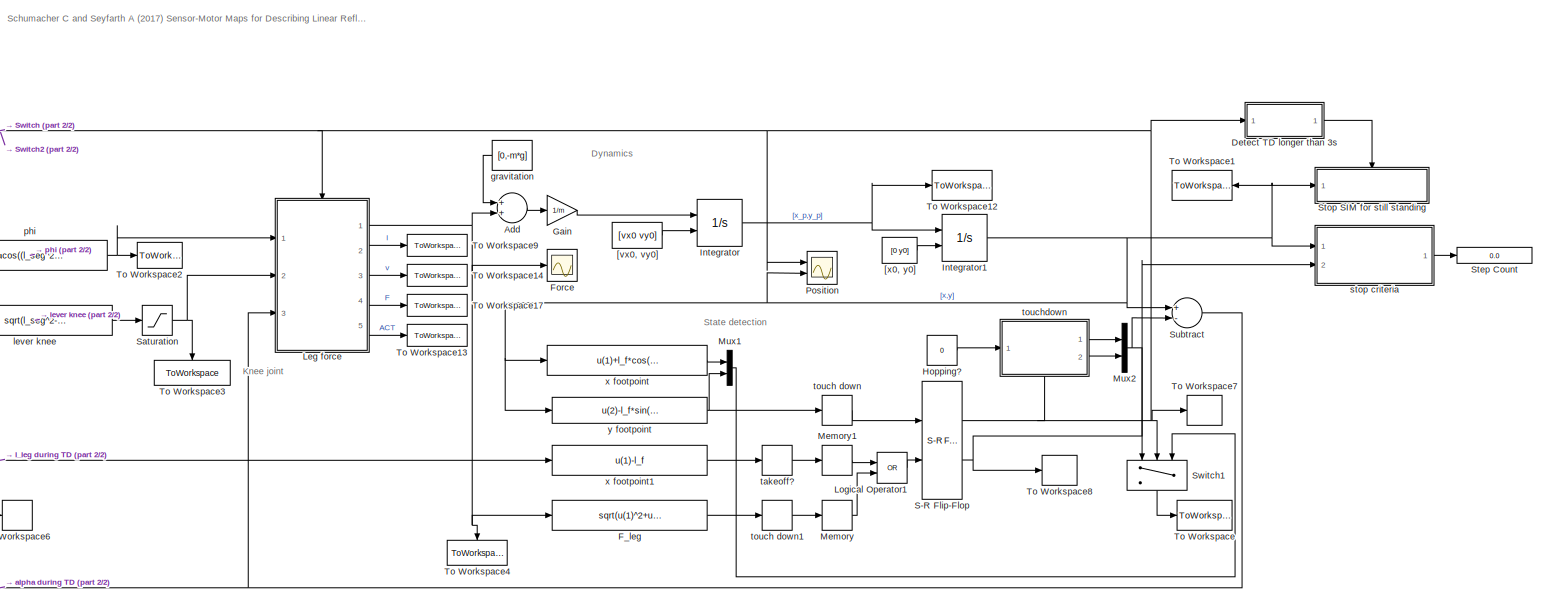
[diagram: root canvas - part 1/2, most of the canvas]
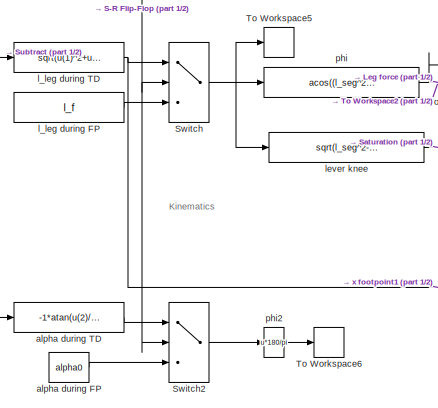
[diagram: root canvas - part 2/2, middle left region]
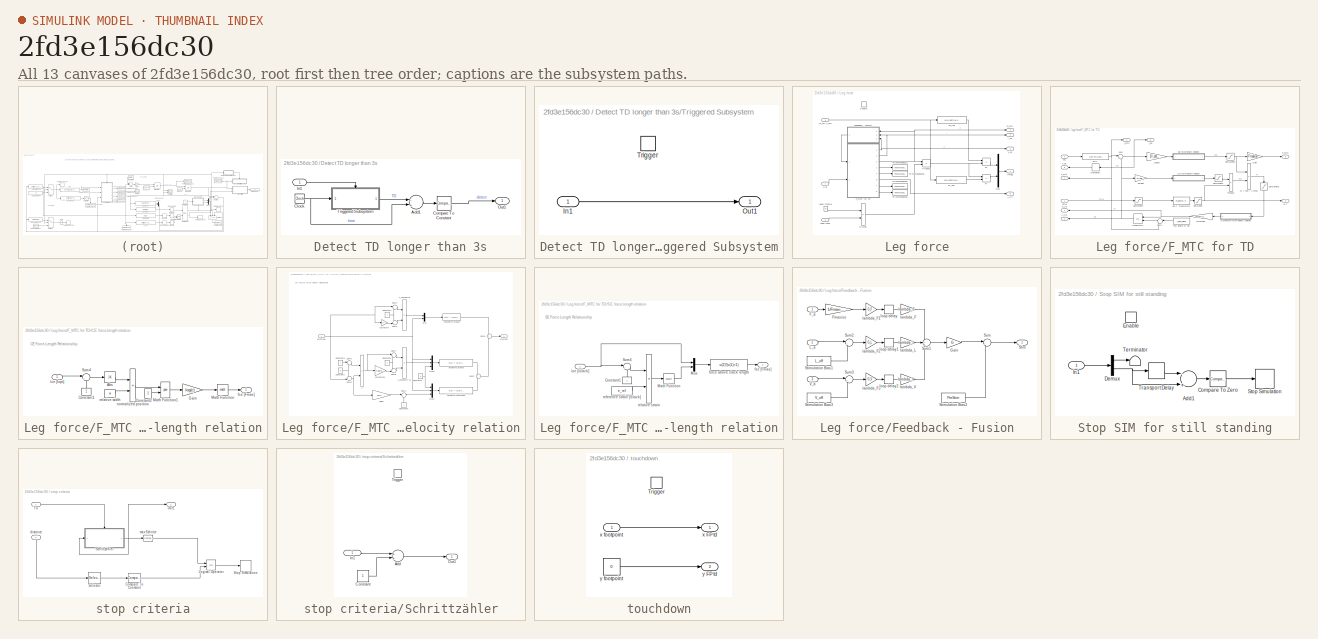
[diagram: thumbnail index - all 13 canvases of the model, root first then tree order]
MODEL slx_2fd3e156dc30
KIND model
CONFIG AbsTol = 1e-8
CONFIG EnableMultiTasking = on
CONFIG FixedStep = auto
CONFIG MaxStep = ts_max
CONFIG MinStep = auto
CONFIG RelTol = 1e-8
CONFIG SampleTimeConstraint = Unconstrained
CONFIG Solver = ode45
CONFIG SolverName = ode45
CONFIG StartTime = 0.0
CONFIG StopTime = 60
BLOCK [Sum] Add
  InputSameDT = off
  OutDataTypeStr = Inherit: Inherit via internal rule
  Ports = [2, 1]
  SaturateOnIntegerOverflow = off
BLOCK [SubSystem] Detect TD longer than 3s
  Ports = [1, 1]
  RequestExecContextInheritance = off
  Variant = off
BLOCK [Sum] Detect TD longer than 3s/Add1
  InputSameDT = off
  Inputs = -+
  OutDataTypeStr = Inherit: Inherit via internal rule
  Ports = [2, 1]
  SaturateOnIntegerOverflow = off
BLOCK [Clock] Detect TD longer than 3s/Clock
BLOCK [Reference] Detect TD longer than 3s/Compare To Constant  REF=simulink/Logic and Bit
Operations/Compare
To Constant
  Ports = [1, 1]
  SourceBlock = simulink/Logic and Bit\nOperations/Compare\nTo Constant
  SourceType = Compare To Constant
BLOCK [Inport] Detect TD longer than 3s/In1
  IconDisplay = Port number
BLOCK [Outport] Detect TD longer than 3s/Out1
  IconDisplay = Port number
BLOCK [SubSystem] Detect TD longer than 3s/Triggered Subsystem
  Ports = [1, 1, 0, 1]
  RequestExecContextInheritance = off
  TreatAsAtomicUnit = on
  Variant = off
BLOCK [Inport] Detect TD longer than 3s/Triggered Subsystem/In1
  IconDisplay = Port number
BLOCK [Outport] Detect TD longer than 3s/Triggered Subsystem/Out1
  IconDisplay = Port number
  InitialOutput = [0]
BLOCK [TriggerPort] Detect TD longer than 3s/Triggered Subsystem/Trigger
  Ports = []
  StatesWhenEnabling = held
  VariantControl = Variant
BLOCK [Fcn] F_leg
  Expr = sqrt(u(1)^2+u(2)^2)
BLOCK [Scope] Force
  NumInputPorts = 1
  Ports = [1]
  ScopeSpecificationString = Simulink.scopes.TimeScopeBlockCfg('CurrentConfiguration', extmgr.ConfigurationSet(extmgr.Configuration('Core','General UI',true),extmgr.Configuration('Core','Source UI',true),extmgr.Configuration('Sources','WiredSimulink',true),extmgr.Configuration('Visuals','Time Domain',true,'SerializedDisplays',{struct('MinYLimReal','-47.55228','MaxYLimReal','3226.37059','YLabelReal','','MinYLimMag','0.00000','...<+1437ch>
BLOCK [Gain] Gain
  Gain = 1/m
  OutDataTypeStr = Inherit: Inherit via internal rule
  ParamDataTypeStr = Inherit: Inherit via internal rule
  SaturateOnIntegerOverflow = off
BLOCK [Constant] Hopping?
  Value = 0
BLOCK [Integrator] Integrator
  InitialConditionSource = external
  Ports = [2, 1]
BLOCK [Integrator] Integrator1
  InitialConditionSource = external
  Ports = [2, 1]
BLOCK [SubSystem] Leg force
  Ports = [3, 5, 1]
  RequestExecContextInheritance = off
  Variant = off
BLOCK [Outport] Leg force/ACT
  IconDisplay = Port number
  Port = 5
BLOCK [Product] Leg force/Divide
  InputSameDT = off
  Inputs = */
  OutDataTypeStr = Inherit: Inherit via internal rule
  Ports = [2, 1]
  RndMeth = Floor
  SaturateOnIntegerOverflow = off
BLOCK [EnablePort] Leg force/Enable
  Ports = []
  PropagateVarSize = During execution
  StatesWhenEnabling = reset
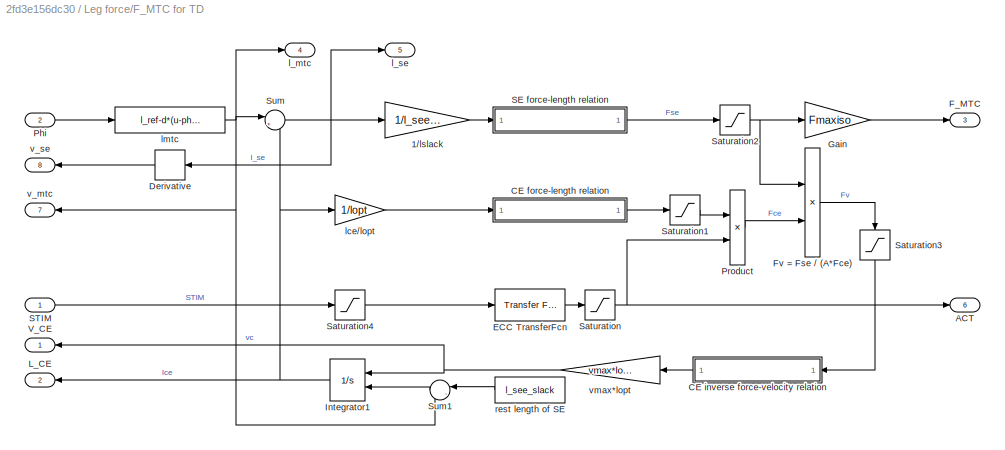
BLOCK [SubSystem] Leg force/F_MTC for TD
  Ports = [2, 8]
  RequestExecContextInheritance = off
  TreatAsAtomicUnit = on
  Variant = off
BLOCK [Gain] Leg force/F_MTC for TD/1//lslack
  Gain = 1/l_see_slack
BLOCK [Outport] Leg force/F_MTC for TD/ACT
  IconDisplay = Port number
  InitialOutput = [-1]
  Port = 6
BLOCK [SubSystem] Leg force/F_MTC for TD/CE force-length relation
  Ports = [1, 1]
  RequestExecContextInheritance = off
  Variant = off
BLOCK [Abs] Leg force/F_MTC for TD/CE force-length relation/Abs
  SaturateOnIntegerOverflow = off
BLOCK [Constant] Leg force/F_MTC for TD/CE force-length relation/Constant1
BLOCK [Constant] Leg force/F_MTC for TD/CE force-length relation/Constant2
  Value = 3
BLOCK [Gain] Leg force/F_MTC for TD/CE force-length relation/Gain
  Gain = log(c)
  OutDataTypeStr = Inherit: Inherit via internal rule
  ParamDataTypeStr = Inherit: Inherit via internal rule
  SaturateOnIntegerOverflow = off
BLOCK [Math] Leg force/F_MTC for TD/CE force-length relation/Math Function
  Ports = [1, 1]
BLOCK [Math] Leg force/F_MTC for TD/CE force-length relation/Math Function1
  Operator = pow
  Ports = [2, 1]
BLOCK [Sum] Leg force/F_MTC for TD/CE force-length relation/Sum4
  IconShape = round
  Inputs = |+-
  Ports = [2, 1]
BLOCK [Outport] Leg force/F_MTC for TD/CE force-length relation/fce [Fmax]
  IconDisplay = Port number
BLOCK [Inport] Leg force/F_MTC for TD/CE force-length relation/lce [lopt]
  IconDisplay = Port number
BLOCK [Product] Leg force/F_MTC for TD/CE force-length relation/normalized position
  InputSameDT = off
  Inputs = */
  OutDataTypeStr = Inherit: Inherit via internal rule
  Ports = [2, 1]
  RndMeth = Floor
  SaturateOnIntegerOverflow = off
BLOCK [Constant] Leg force/F_MTC for TD/CE force-length relation/relative width
  Value = w
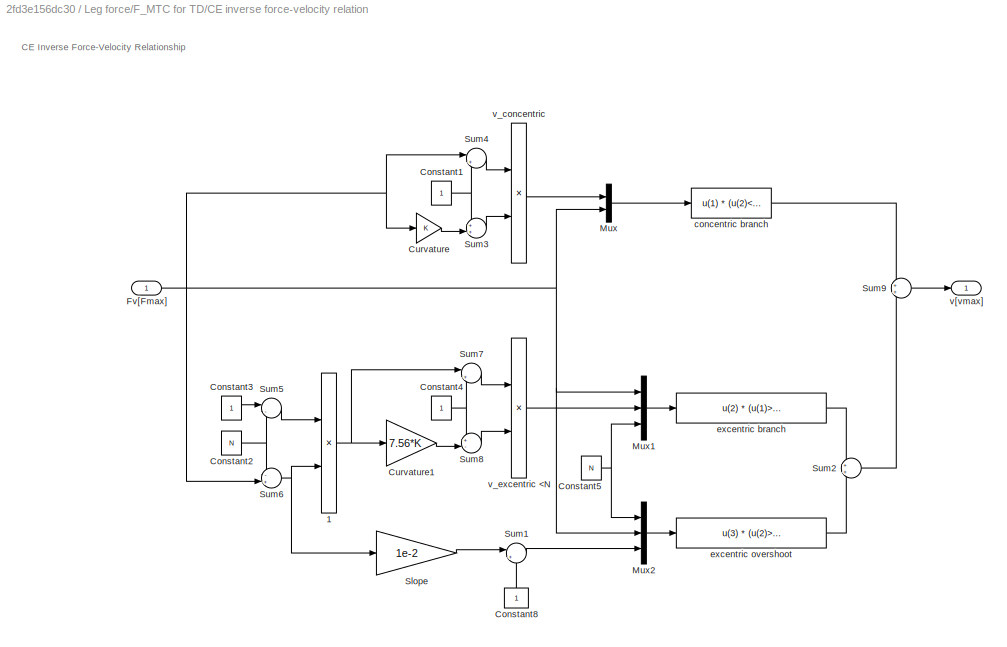
BLOCK [SubSystem] Leg force/F_MTC for TD/CE inverse force-velocity relation
  Ports = [1, 1]
  RequestExecContextInheritance = off
  Variant = off
BLOCK [Product] Leg force/F_MTC for TD/CE inverse force-velocity relation/1
  InputSameDT = off
  Inputs = /*
  OutDataTypeStr = Inherit: Inherit via internal rule
  Ports = [2, 1]
  RndMeth = Floor
  SaturateOnIntegerOverflow = off
BLOCK [Constant] Leg force/F_MTC for TD/CE inverse force-velocity relation/Constant1
BLOCK [Constant] Leg force/F_MTC for TD/CE inverse force-velocity relation/Constant2
  Value = N
BLOCK [Constant] Leg force/F_MTC for TD/CE inverse force-velocity relation/Constant3
BLOCK [Constant] Leg force/F_MTC for TD/CE inverse force-velocity relation/Constant4
BLOCK [Constant] Leg force/F_MTC for TD/CE inverse force-velocity relation/Constant5
  Value = N
BLOCK [Constant] Leg force/F_MTC for TD/CE inverse force-velocity relation/Constant8
BLOCK [Gain] Leg force/F_MTC for TD/CE inverse force-velocity relation/Curvature
  Gain = K
BLOCK [Gain] Leg force/F_MTC for TD/CE inverse force-velocity relation/Curvature1
  Gain = 7.56*K
BLOCK [Inport] Leg force/F_MTC for TD/CE inverse force-velocity relation/Fv[Fmax]
  IconDisplay = Port number
BLOCK [Mux] Leg force/F_MTC for TD/CE inverse force-velocity relation/Mux
  DisplayOption = bar
  Inputs = 2
  Ports = [2, 1]
BLOCK [Mux] Leg force/F_MTC for TD/CE inverse force-velocity relation/Mux1
  DisplayOption = bar
  Inputs = 3
  Ports = [3, 1]
BLOCK [Mux] Leg force/F_MTC for TD/CE inverse force-velocity relation/Mux2
  DisplayOption = bar
  Inputs = 3
  Ports = [3, 1]
BLOCK [Gain] Leg force/F_MTC for TD/CE inverse force-velocity relation/Slope
  Gain = 1e-2
BLOCK [Sum] Leg force/F_MTC for TD/CE inverse force-velocity relation/Sum1
  IconShape = round
  Inputs = |++
  Ports = [2, 1]
BLOCK [Sum] Leg force/F_MTC for TD/CE inverse force-velocity relation/Sum2
  IconShape = round
  Ports = [2, 1]
BLOCK [Sum] Leg force/F_MTC for TD/CE inverse force-velocity relation/Sum3
  IconShape = round
  Inputs = ++|
  Ports = [2, 1]
BLOCK [Sum] Leg force/F_MTC for TD/CE inverse force-velocity relation/Sum4
  IconShape = round
  Inputs = |+-
  Ports = [2, 1]
BLOCK [Sum] Leg force/F_MTC for TD/CE inverse force-velocity relation/Sum5
  IconShape = round
  Inputs = |-+
  Ports = [2, 1]
BLOCK [Sum] Leg force/F_MTC for TD/CE inverse force-velocity relation/Sum6
  IconShape = round
  Inputs = -+|
  Ports = [2, 1]
BLOCK [Sum] Leg force/F_MTC for TD/CE inverse force-velocity relation/Sum7
  IconShape = round
  Inputs = |++
  Ports = [2, 1]
BLOCK [Sum] Leg force/F_MTC for TD/CE inverse force-velocity relation/Sum8
  IconShape = round
  Inputs = +-|
  Ports = [2, 1]
BLOCK [Sum] Leg force/F_MTC for TD/CE inverse force-velocity relation/Sum9
  IconShape = round
  Ports = [2, 1]
BLOCK [Fcn] Leg force/F_MTC for TD/CE inverse force-velocity relation/concentric branch
  Expr = u(1) * (u(2)<=1)
BLOCK [Fcn] Leg force/F_MTC for TD/CE inverse force-velocity relation/excentric branch
  Expr = u(2) * (u(1)>1)*(u(1)<=u(3))
BLOCK [Fcn] Leg force/F_MTC for TD/CE inverse force-velocity relation/excentric overshoot
  Expr = u(3) * (u(2)>u(1))
BLOCK [Outport] Leg force/F_MTC for TD/CE inverse force-velocity relation/v[vmax]
  IconDisplay = Port number
BLOCK [Product] Leg force/F_MTC for TD/CE inverse force-velocity relation/v_concentric
  InputSameDT = off
  Inputs = */
  OutDataTypeStr = Inherit: Inherit via internal rule
  Ports = [2, 1]
  RndMeth = Floor
  SaturateOnIntegerOverflow = off
BLOCK [Product] Leg force/F_MTC for TD/CE inverse force-velocity relation/v_excentric <N
  InputSameDT = off
  Inputs = */
  OutDataTypeStr = Inherit: Inherit via internal rule
  Ports = [2, 1]
  RndMeth = Floor
  SaturateOnIntegerOverflow = off
BLOCK [Derivative] Leg force/F_MTC for TD/Derivative
BLOCK [Reference] Leg force/F_MTC for TD/ECC TransferFcn  REF=simulink_extras/Additional
Linear/Transfer Fcn
(with initial outputs)
  AttributesFormatString = pre-activation: %<Y0>
  Ports = [1, 1]
  SourceBlock = simulink_extras/Additional\nLinear/Transfer Fcn\n(with initial outputs)
  SourceType = Transfer Function with Initial Outputs
BLOCK [Outport] Leg force/F_MTC for TD/F_MTC
  IconDisplay = Port number
  InitialOutput = [-1]
  Port = 3
BLOCK [Product] Leg force/F_MTC for TD/Fv = Fse // (A*Fce)
  Inputs = */
  Ports = [2, 1]
  RndMeth = Floor
BLOCK [Gain] Leg force/F_MTC for TD/Gain
  Gain = Fmaxiso
  OutDataTypeStr = Inherit: Inherit via internal rule
  ParamDataTypeStr = Inherit: Inherit via internal rule
  SaturateOnIntegerOverflow = off
BLOCK [Integrator] Leg force/F_MTC for TD/Integrator1
  InitialConditionSource = external
  Ports = [2, 1]
BLOCK [Outport] Leg force/F_MTC for TD/L_CE
  IconDisplay = Port number
  InitialOutput = [-1]
  Port = 2
BLOCK [Inport] Leg force/F_MTC for TD/Phi
  IconDisplay = Port number
  Port = 2
BLOCK [Product] Leg force/F_MTC for TD/Product
  InputSameDT = off
  OutDataTypeStr = Inherit: Inherit via internal rule
  Ports = [2, 1]
  RndMeth = Floor
  SaturateOnIntegerOverflow = off
BLOCK [SubSystem] Leg force/F_MTC for TD/SE force-length relation
  Ports = [1, 1]
  RequestExecContextInheritance = off
  Variant = off
BLOCK [Constant] Leg force/F_MTC for TD/SE force-length relation/Constant1
BLOCK [Math] Leg force/F_MTC for TD/SE force-length relation/Math Function
  Operator = square
  Ports = [1, 1]
BLOCK [Mux] Leg force/F_MTC for TD/SE force-length relation/Mux
  DisplayOption = bar
  Inputs = 2
  Ports = [2, 1]
BLOCK [Sum] Leg force/F_MTC for TD/SE force-length relation/Sum4
  IconShape = round
  Inputs = |+-
  Ports = [2, 1]
BLOCK [Fcn] Leg force/F_MTC for TD/SE force-length relation/force above slack length
  Expr = u(2)*(u(1)>1)
BLOCK [Outport] Leg force/F_MTC for TD/SE force-length relation/fse [Fmax]
  IconDisplay = Port number
BLOCK [Inport] Leg force/F_MTC for TD/SE force-length relation/lse [lslack]
  IconDisplay = Port number
BLOCK [Constant] Leg force/F_MTC for TD/SE force-length relation/reference strain [lslack]
  Value = e_ref
BLOCK [Product] Leg force/F_MTC for TD/SE force-length relation/relative strain
  InputSameDT = off
  Inputs = */
  OutDataTypeStr = Inherit: Inherit via internal rule
  Ports = [2, 1]
  RndMeth = Floor
  SaturateOnIntegerOverflow = off
BLOCK [Inport] Leg force/F_MTC for TD/STIM
  IconDisplay = Port number
BLOCK [Saturate] Leg force/F_MTC for TD/Saturation
  InputPortMap = u0
  LowerLimit = 0.001
  Ports = [1, 1]
  UpperLimit = inf
  ZeroCross = off
BLOCK [Saturate] Leg force/F_MTC for TD/Saturation1
  InputPortMap = u0
  LowerLimit = 0
  Ports = [1, 1]
  UpperLimit = 1
  ZeroCross = off
BLOCK [Saturate] Leg force/F_MTC for TD/Saturation2
  InputPortMap = u0
  LowerLimit = 0
  Ports = [1, 1]
  UpperLimit = N
BLOCK [Saturate] Leg force/F_MTC for TD/Saturation3
  InputPortMap = u0
  LowerLimit = 0
  Ports = [1, 1]
  UpperLimit = N
  ZeroCross = off
BLOCK [Saturate] Leg force/F_MTC for TD/Saturation4
  InputPortMap = u0
  LowerLimit = 0
  Ports = [1, 1]
  UpperLimit = 1
  ZeroCross = off
BLOCK [Sum] Leg force/F_MTC for TD/Sum
  IconShape = round
  InputSameDT = off
  Inputs = |+-
  OutDataTypeStr = Inherit: Inherit via internal rule
  Ports = [2, 1]
  SaturateOnIntegerOverflow = off
BLOCK [Sum] Leg force/F_MTC for TD/Sum1
  IconShape = round
  Inputs = |-+
  Ports = [2, 1]
BLOCK [Outport] Leg force/F_MTC for TD/V_CE
  IconDisplay = Port number
  InitialOutput = [-1]
BLOCK [Outport] Leg force/F_MTC for TD/l_mtc
  IconDisplay = Port number
  Port = 4
BLOCK [Outport] Leg force/F_MTC for TD/l_se
  IconDisplay = Port number
  Port = 5
BLOCK [Gain] Leg force/F_MTC for TD/lce//lopt
  Gain = 1/lopt
BLOCK [Fcn] Leg force/F_MTC for TD/lmtc
  Expr = l_ref-d*(u-phi_ref)
BLOCK [Constant] Leg force/F_MTC for TD/rest length of SE
  Value = l_see_slack
BLOCK [Outport] Leg force/F_MTC for TD/v_mtc
  IconDisplay = Port number
  Port = 7
BLOCK [Outport] Leg force/F_MTC for TD/v_se
  IconDisplay = Port number
  Port = 8
BLOCK [Gain] Leg force/F_MTC for TD/vmax*lopt
  Gain = vmax*lopt
BLOCK [Outport] Leg force/F_mtc
  IconDisplay = Port number
  Port = 4
BLOCK [SubSystem] Leg force/Feedback - Fusion
  Ports = [3, 1]
  RequestExecContextInheritance = off
  Variant = off
BLOCK [Inport] Leg force/Feedback - Fusion/F_a
  IconDisplay = Port number
BLOCK [Gain] Leg force/Feedback - Fusion/Fmaxiso
  Gain = 1/Fmaxiso
  OutDataTypeStr = Inherit: Inherit via internal rule
  ParamDataTypeStr = Inherit: Inherit via internal rule
  SaturateOnIntegerOverflow = off
BLOCK [Gain] Leg force/Feedback - Fusion/Gain
  Gain = G
  OutDataTypeStr = Inherit: Inherit via internal rule
  ParamDataTypeStr = Inherit: Inherit via internal rule
  SaturateOnIntegerOverflow = off
BLOCK [Inport] Leg force/Feedback - Fusion/L_a
  IconDisplay = Port number
  Port = 2
BLOCK [Outport] Leg force/Feedback - Fusion/Stim
  IconDisplay = Port number
BLOCK [Constant] Leg force/Feedback - Fusion/Stimulation Bias1
  Value = L_off
BLOCK [Constant] Leg force/Feedback - Fusion/Stimulation Bias2
  Value = PreStim
BLOCK [Constant] Leg force/Feedback - Fusion/Stimulation Bias3
  Value = V_off
BLOCK [Sum] Leg force/Feedback - Fusion/Sum
  IconShape = round
  InputSameDT = off
  Inputs = |++
  OutDataTypeStr = Inherit: Inherit via internal rule
  Ports = [2, 1]
  SaturateOnIntegerOverflow = off
BLOCK [Sum] Leg force/Feedback - Fusion/Sum1
  IconShape = round
  InputSameDT = off
  Inputs = +++
  OutDataTypeStr = Inherit: Inherit via internal rule
  Ports = [3, 1]
  SaturateOnIntegerOverflow = off
BLOCK [Sum] Leg force/Feedback - Fusion/Sum2
  IconShape = round
  InputSameDT = off
  Inputs = |+-
  OutDataTypeStr = Inherit: Inherit via internal rule
  Ports = [2, 1]
  SaturateOnIntegerOverflow = off
BLOCK [Sum] Leg force/Feedback - Fusion/Sum3
  IconShape = round
  InputSameDT = off
  Inputs = |+-
  OutDataTypeStr = Inherit: Inherit via internal rule
  Ports = [2, 1]
  SaturateOnIntegerOverflow = off
BLOCK [Inport] Leg force/Feedback - Fusion/V_a
  IconDisplay = Port number
  Port = 3
BLOCK [Gain] Leg force/Feedback - Fusion/lambda_F
  Gain = lambda_F
  OutDataTypeStr = Inherit: Inherit via internal rule
  ParamDataTypeStr = Inherit: Inherit via internal rule
  SaturateOnIntegerOverflow = off
BLOCK [Gain] Leg force/Feedback - Fusion/lambda_F1
  Gain = G_F
  OutDataTypeStr = Inherit: Inherit via internal rule
  ParamDataTypeStr = Inherit: Inherit via internal rule
  SaturateOnIntegerOverflow = off
BLOCK [Gain] Leg force/Feedback - Fusion/lambda_F2
  Gain = G_L
  OutDataTypeStr = Inherit: Inherit via internal rule
  ParamDataTypeStr = Inherit: Inherit via internal rule
  SaturateOnIntegerOverflow = off
BLOCK [Gain] Leg force/Feedback - Fusion/lambda_F3
  Gain = G_V
  OutDataTypeStr = Inherit: Inherit via internal rule
  ParamDataTypeStr = Inherit: Inherit via internal rule
  SaturateOnIntegerOverflow = off
BLOCK [Gain] Leg force/Feedback - Fusion/lambda_L
  Gain = lambda_L
  OutDataTypeStr = Inherit: Inherit via internal rule
  ParamDataTypeStr = Inherit: Inherit via internal rule
  SaturateOnIntegerOverflow = off
BLOCK [Gain] Leg force/Feedback - Fusion/lambda_V
  Gain = lambda_V
  OutDataTypeStr = Inherit: Inherit via internal rule
  ParamDataTypeStr = Inherit: Inherit via internal rule
  SaturateOnIntegerOverflow = off
BLOCK [TransportDelay] Leg force/Feedback - Fusion/loop delay
  DelayTime = Delay
  Ports = [1, 1]
BLOCK [TransportDelay] Leg force/Feedback - Fusion/loop delay1
  DelayTime = Delay
  Ports = [1, 1]
BLOCK [TransportDelay] Leg force/Feedback - Fusion/loop delay2
  DelayTime = Delay
  Ports = [1, 1]
BLOCK [Product] Leg force/Fx
  InputSameDT = off
  OutDataTypeStr = Inherit: Inherit via internal rule
  Ports = [2, 1]
  RndMeth = Floor
  SaturateOnIntegerOverflow = off
BLOCK [Fcn] Leg force/Fx_leg
  Expr = u(1)/sqrt(u(1)^2+u(2)^2)
BLOCK [Product] Leg force/Fy
  InputSameDT = off
  OutDataTypeStr = Inherit: Inherit via internal rule
  Ports = [2, 1]
  RndMeth = Floor
  SaturateOnIntegerOverflow = off
BLOCK [Fcn] Leg force/Fy_leg
  Expr = u(2)/sqrt(u(1)^2+u(2)^2)
BLOCK [Mux] Leg force/Mux
  DisplayOption = bar
  Inputs = 2
  Ports = [2, 1]
BLOCK [Inport] Leg force/Phi
  IconDisplay = Port number
BLOCK [Product] Leg force/Product
  InputSameDT = off
  OutDataTypeStr = Inherit: Inherit via internal rule
  Ports = [2, 1]
  RndMeth = Floor
  SaturateOnIntegerOverflow = off
BLOCK [ToWorkspace] Leg force/To Workspace10
  FixptAsFi = on
  MaxDataPoints = inf
  Ports = [1]
  SampleTime = -1
  Save2DSignal = 3-D array (concatenate along third dimension)
  VariableName = SIM_l_se
BLOCK [ToWorkspace] Leg force/To Workspace11
  FixptAsFi = on
  MaxDataPoints = inf
  Ports = [1]
  SampleTime = -1
  Save2DSignal = 3-D array (concatenate along third dimension)
  VariableName = SIM_l_mtc
BLOCK [ToWorkspace] Leg force/To Workspace15
  FixptAsFi = on
  MaxDataPoints = inf
  Ports = [1]
  SampleTime = -1
  Save2DSignal = 3-D array (concatenate along third dimension)
  VariableName = SIM_v_mtc
BLOCK [ToWorkspace] Leg force/To Workspace16
  FixptAsFi = on
  MaxDataPoints = inf
  Ports = [1]
  SampleTime = -1
  Save2DSignal = 3-D array (concatenate along third dimension)
  VariableName = SIM_v_se
BLOCK [Outport] Leg force/[Fleg]
  IconDisplay = Port number
  InitialOutput = [0 0]
  OutputWhenDisabled = reset
BLOCK [Inport] Leg force/[x_ref,y_ref]
  IconDisplay = Port number
  Port = 3
BLOCK [Inport] Leg force/knee lever
  IconDisplay = Port number
  Port = 2
BLOCK [Outport] Leg force/l_ce
  IconDisplay = Port number
  Port = 2
BLOCK [Constant] Leg force/lever muscle
  Value = d
BLOCK [Outport] Leg force/v_ce
  IconDisplay = Port number
  Port = 3
BLOCK [Logic] Logical Operator1
  AllPortsSameDT = off
  Operator = OR
  OutDataTypeStr = boolean
  Ports = [2, 1]
BLOCK [Memory] Memory
  InheritSampleTime = on
BLOCK [Memory] Memory1
  InheritSampleTime = on
  X0 = -1
BLOCK [Mux] Mux1
  DisplayOption = bar
  Inputs = 2
  Ports = [2, 1]
BLOCK [Mux] Mux2
  DisplayOption = bar
  Inputs = 2
  Ports = [2, 1]
BLOCK [Scope] Position
  NumInputPorts = 2
  Ports = [2]
  ScopeSpecificationString = Simulink.scopes.TimeScopeBlockCfg('CurrentConfiguration', extmgr.ConfigurationSet(extmgr.Configuration('Core','General UI',true),extmgr.Configuration('Core','Source UI',true),extmgr.Configuration('Sources','WiredSimulink',true,'DataLoggingVariableName','ScopeData1'),extmgr.Configuration('Visuals','Time Domain',true,'SerializedDisplays',{struct('MinYLimReal','-0.13281','MaxYLimReal','1.19527','YLab...<+1466ch>
BLOCK [Reference] S-R Flip-Flop  REF=simulink_extras/Flip Flops/S-R
Flip-Flop
  Ports = [2, 2]
  SourceBlock = simulink_extras/Flip Flops/S-R\nFlip-Flop
  SourceType = SRFlipFlop
BLOCK [Saturate] Saturation
  InputPortMap = u0
  LowerLimit = 0.001
  Ports = [1, 1]
  UpperLimit = inf
BLOCK [Display] Step Count
  Decimation = 1
  Ports = [1]
BLOCK [SubSystem] Stop SIM for still standing
  Ports = [1, 0, 1]
  RequestExecContextInheritance = off
  Variant = off
BLOCK [Sum] Stop SIM for still standing/Add1
  InputSameDT = off
  Inputs = -+
  OutDataTypeStr = Inherit: Inherit via internal rule
  Ports = [2, 1]
  SaturateOnIntegerOverflow = off
BLOCK [Reference] Stop SIM for still standing/Compare To Zero  REF=simulink/Logic and Bit
Operations/Compare
To Zero
  Ports = [1, 1]
  SourceBlock = simulink/Logic and Bit\nOperations/Compare\nTo Zero
  SourceType = Compare To Zero
BLOCK [Demux] Stop SIM for still standing/Demux
  DisplayOption = bar
  Outputs = 2
  Ports = [1, 2]
BLOCK [EnablePort] Stop SIM for still standing/Enable
  Ports = []
BLOCK [Inport] Stop SIM for still standing/In1
  IconDisplay = Port number
BLOCK [Stop] Stop SIM for still standing/Stop Simulation
BLOCK [Terminator] Stop SIM for still standing/Terminator
BLOCK [TransportDelay] Stop SIM for still standing/Transport Delay
  Ports = [1, 1]
  TransDelayFeedthrough = on
BLOCK [Sum] Subtract
  InputSameDT = off
  Inputs = +-
  OutDataTypeStr = Inherit: Inherit via internal rule
  Ports = [2, 1]
  SaturateOnIntegerOverflow = off
BLOCK [Switch] Switch
  Criteria = u2 > Threshold
  InputSameDT = off
  SaturateOnIntegerOverflow = off
BLOCK [Switch] Switch1
  Criteria = u2 > Threshold
  InputSameDT = off
  SaturateOnIntegerOverflow = off
BLOCK [Switch] Switch2
  Criteria = u2 > Threshold
  InputSameDT = off
  SaturateOnIntegerOverflow = off
BLOCK [ToWorkspace] To Workspace
  FixptAsFi = on
  MaxDataPoints = inf
  Ports = [1]
  SampleTime = -1
  Save2DSignal = 3-D array (concatenate along third dimension)
  VariableName = SIM_xyFP
BLOCK [ToWorkspace] To Workspace1
  MaxDataPoints = inf
  Ports = [1]
  SampleTime = -1
  Save2DSignal = 2-D array (concatenate along first dimension)
  VariableName = SIM_xyCOM
BLOCK [ToWorkspace] To Workspace12
  FixptAsFi = on
  MaxDataPoints = inf
  Ports = [1]
  SampleTime = -1
  VariableName = vCOM
BLOCK [ToWorkspace] To Workspace13
  FixptAsFi = on
  MaxDataPoints = inf
  Ports = [1]
  SampleTime = -1
  Save2DSignal = 3-D array (concatenate along third dimension)
  VariableName = SIM_ACT
BLOCK [ToWorkspace] To Workspace14
  FixptAsFi = on
  MaxDataPoints = inf
  Ports = [1]
  SampleTime = -1
  Save2DSignal = 3-D array (concatenate along third dimension)
  VariableName = SIM_v_ce
BLOCK [ToWorkspace] To Workspace17
  FixptAsFi = on
  MaxDataPoints = inf
  Ports = [1]
  SampleTime = -1
  Save2DSignal = 3-D array (concatenate along third dimension)
  VariableName = SIM_F_mtc
BLOCK [ToWorkspace] To Workspace2
  FixptAsFi = on
  MaxDataPoints = inf
  Ports = [1]
  SampleTime = -1
  Save2DSignal = 3-D array (concatenate along third dimension)
  VariableName = SIM_phi
BLOCK [ToWorkspace] To Workspace3
  FixptAsFi = on
  MaxDataPoints = inf
  Ports = [1]
  SampleTime = -1
  Save2DSignal = 3-D array (concatenate along third dimension)
  VariableName = SIM_lever_arm
BLOCK [ToWorkspace] To Workspace4
  FixptAsFi = on
  MaxDataPoints = inf
  Ports = [1]
  SampleTime = -1
  Save2DSignal = 3-D array (concatenate along third dimension)
  VariableName = SIM_F_leg
BLOCK [ToWorkspace] To Workspace5
  FixptAsFi = on
  MaxDataPoints = inf
  Ports = [1]
  SampleTime = -1
  Save2DSignal = 3-D array (concatenate along third dimension)
  VariableName = l_leg
BLOCK [ToWorkspace] To Workspace6
  FixptAsFi = on
  MaxDataPoints = inf
  Ports = [1]
  SampleTime = -1
  Save2DSignal = 3-D array (concatenate along third dimension)
  VariableName = alpha
BLOCK [ToWorkspace] To Workspace7
  FixptAsFi = on
  MaxDataPoints = inf
  Ports = [1]
  SampleTime = -1
  Save2DSignal = 3-D array (concatenate along third dimension)
  VariableName = TD
BLOCK [ToWorkspace] To Workspace8
  FixptAsFi = on
  MaxDataPoints = inf
  Ports = [1]
  SampleTime = -1
  Save2DSignal = 3-D array (concatenate along third dimension)
  VariableName = TO
BLOCK [ToWorkspace] To Workspace9
  FixptAsFi = on
  MaxDataPoints = inf
  Ports = [1]
  SampleTime = -1
  Save2DSignal = 3-D array (concatenate along third dimension)
  VariableName = SIM_l_ce
BLOCK [Constant] [vx0, vy0]
  Value = [vx0 vy0]
BLOCK [Constant] [x0, y0]
  Value = [0 y0]
BLOCK [Constant] alpha during FP
  Value = alpha0
BLOCK [Fcn] alpha during TD
  Expr = -1*atan(u(2)/u(1))
BLOCK [Constant] gravitation
  Value = [0,-m*g]
BLOCK [Constant] l_leg during FP
  Value = l_f
BLOCK [Fcn] l_leg during TD
  Expr = sqrt(u(1)^2+u(2)^2)
BLOCK [Fcn] lever knee
  Expr = sqrt(l_seg^2-(u/2)^2)
BLOCK [Fcn] phi
  Expr = acos((l_seg^2+l_seg^2-u^2)/(2*l_seg*l_seg))
BLOCK [Fcn] phi2
  Expr = u*180/pi
BLOCK [SubSystem] stop criteria
  Ports = [2, 1]
  RequestExecContextInheritance = off
  Variant = off
BLOCK [Inport] stop criteria/ distance
  IconDisplay = Port number
BLOCK [Reference] stop criteria/Compare To Constant  REF=simulink/Logic and Bit
Operations/Compare
To Constant
  Ports = [1, 1]
  SourceBlock = simulink/Logic and Bit\nOperations/Compare\nTo Constant
  SourceType = Compare To Constant
BLOCK [Logic] stop criteria/Logical Operator
  AllPortsSameDT = off
  Operator = OR
  OutDataTypeStr = boolean
  Ports = [2, 1]
BLOCK [Outport] stop criteria/Out1
  IconDisplay = Port number
BLOCK [SubSystem] stop criteria/Schrittzähler
  Ports = [1, 1, 0, 1]
  RequestExecContextInheritance = off
  TreatAsAtomicUnit = on
  Variant = off
BLOCK [Sum] stop criteria/Schrittzähler/Add
  InputSameDT = off
  OutDataTypeStr = Inherit: Inherit via internal rule
  Ports = [2, 1]
  SaturateOnIntegerOverflow = off
BLOCK [Constant] stop criteria/Schrittzähler/Constant
BLOCK [Inport] stop criteria/Schrittzähler/In1
  IconDisplay = Port number
  LatchByDelayingOutsideSignal = on
BLOCK [Outport] stop criteria/Schrittzähler/Out1
  IconDisplay = Port number
BLOCK [TriggerPort] stop criteria/Schrittzähler/Trigger
  Ports = []
  StatesWhenEnabling = held
  VariantControl = Variant
BLOCK [Selector] stop criteria/Selector
  IndexOptions = Index vector (dialog)
  Indices = [2]
  InputPortWidth = 2
  OutputSizes = 1
  Ports = [1, 1]
BLOCK [Stop] stop criteria/Stop Simulation
BLOCK [Inport] stop criteria/TO
  IconDisplay = Port number
  Port = 2
BLOCK [Reference] stop criteria/max Schritte  REF=simulink/Logic and Bit
Operations/Compare
To Constant
  Ports = [1, 1]
  SourceBlock = simulink/Logic and Bit\nOperations/Compare\nTo Constant
  SourceType = Compare To Constant
BLOCK [HitCross] takeoff?
  HitCrossingDirection = rising
  HitCrossingOffset = 1e-20
  Ports = [1, 1]
BLOCK [HitCross] touch down
  HitCrossingDirection = falling
  Ports = [1, 1]
BLOCK [HitCross] touch down1
  HitCrossingDirection = falling
  HitCrossingOffset = 1e-20
  Ports = [1, 1]
BLOCK [SubSystem] touchdown
  Ports = [1, 2, 0, 1]
  RequestExecContextInheritance = off
  TreatAsAtomicUnit = on
  Variant = off
BLOCK [TriggerPort] touchdown/Trigger
  Ports = []
  StatesWhenEnabling = held
  VariantControl = Variant
BLOCK [Outport] touchdown/x FP td
  IconDisplay = Port number
BLOCK [Inport] touchdown/x footpoint
  IconDisplay = Port number
BLOCK [Outport] touchdown/y FP td
  IconDisplay = Port number
  InitialOutput = [0]
  Port = 2
BLOCK [Constant] touchdown/y footpoint
  Value = 0
BLOCK [Fcn] x footpoint
  Expr = u(1)+l_f*cos(alpha0)
BLOCK [Fcn] x footpoint1
  Expr = u(1)-l_f
BLOCK [Fcn] y footpoint
  Expr = u(2)-l_f*sin(alpha0)
ANNOTATION (root): Schumacher C and Seyfarth A (2017) Sensor-Motor Maps for Describing Linear Reflex Composition in Hopping. Front. Comput. Neurosci. 11:108. doi: 10.3389/fncom.2017.00108
ANNOTATION (root): Dynamics
ANNOTATION (root): State detection
ANNOTATION (root): Knee joint
ANNOTATION (root): Kinematics
ANNOTATION Leg force/F_MTC for TD/CE force-length relation: CE Force-Length Relationship
ANNOTATION Leg force/F_MTC for TD/CE inverse force-velocity relation: CE Inverse Force-Velocity Relationship
ANNOTATION Leg force/F_MTC for TD/SE force-length relation: SE Force-Length Relationship
LINE Add:1 -> Gain:1
LINE Detect TD longer than 3s/Add1:1 -> Detect TD longer than 3s/Compare To Constant:1
NET Detect TD longer than 3s/Clock:1 -> Detect TD longer than 3s/Add1:2, Detect TD longer than 3s/Triggered Subsystem:1
LINE Detect TD longer than 3s/Compare To Constant:1 -> Detect TD longer than 3s/Out1:1
LINE Detect TD longer than 3s/In1:1 -> Detect TD longer than 3s/Triggered Subsystem:trigger
LINE Detect TD longer than 3s/Triggered Subsystem/In1:1 -> Detect TD longer than 3s/Triggered Subsystem/Out1:1
LINE Detect TD longer than 3s/Triggered Subsystem:1 -> Detect TD longer than 3s/Add1:1
LINE Detect TD longer than 3s:1 -> Stop SIM for still standing:enable
LINE F_leg:1 -> touch down1:1
LINE Gain:1 -> Integrator:1
LINE Hopping?:1 -> touchdown:1
NET Integrator1:1 -> Position:2, Stop SIM for still standing:1, Subtract:1, To Workspace1:1, stop criteria:1, x footpoint:1, y footpoint:1
NET Integrator:1 -> Integrator1:1, To Workspace12:1
LINE Leg force/Divide:1 -> Leg force/Product:2
LINE Leg force/F_MTC for TD/1//lslack:1 -> Leg force/F_MTC for TD/SE force-length relation:1
LINE Leg force/F_MTC for TD/CE force-length relation/Abs:1 -> Leg force/F_MTC for TD/CE force-length relation/normalized position:1
LINE Leg force/F_MTC for TD/CE force-length relation/Constant1:1 -> Leg force/F_MTC for TD/CE force-length relation/Sum4:2
LINE Leg force/F_MTC for TD/CE force-length relation/Constant2:1 -> Leg force/F_MTC for TD/CE force-length relation/Math Function1:2
LINE Leg force/F_MTC for TD/CE force-length relation/Gain:1 -> Leg force/F_MTC for TD/CE force-length relation/Math Function:1
LINE Leg force/F_MTC for TD/CE force-length relation/Math Function1:1 -> Leg force/F_MTC for TD/CE force-length relation/Gain:1
LINE Leg force/F_MTC for TD/CE force-length relation/Math Function:1 -> Leg force/F_MTC for TD/CE force-length relation/fce [Fmax]:1
LINE Leg force/F_MTC for TD/CE force-length relation/Sum4:1 -> Leg force/F_MTC for TD/CE force-length relation/Abs:1
LINE Leg force/F_MTC for TD/CE force-length relation/lce [lopt]:1 -> Leg force/F_MTC for TD/CE force-length relation/Sum4:1
LINE Leg force/F_MTC for TD/CE force-length relation/normalized position:1 -> Leg force/F_MTC for TD/CE force-length relation/Math Function1:1
LINE Leg force/F_MTC for TD/CE force-length relation/relative width:1 -> Leg force/F_MTC for TD/CE force-length relation/normalized position:2
LINE Leg force/F_MTC for TD/CE force-length relation:1 -> Leg force/F_MTC for TD/Saturation1:1
NET Leg force/F_MTC for TD/CE inverse force-velocity relation/1:1 -> Leg force/F_MTC for TD/CE inverse force-velocity relation/Curvature1:1, Leg force/F_MTC for TD/CE inverse force-velocity relation/Sum7:1
NET Leg force/F_MTC for TD/CE inverse force-velocity relation/Constant1:1 -> Leg force/F_MTC for TD/CE inverse force-velocity relation/Sum3:1, Leg force/F_MTC for TD/CE inverse force-velocity relation/Sum4:2
NET Leg force/F_MTC for TD/CE inverse force-velocity relation/Constant2:1 -> Leg force/F_MTC for TD/CE inverse force-velocity relation/Sum5:2, Leg force/F_MTC for TD/CE inverse force-velocity relation/Sum6:1
LINE Leg force/F_MTC for TD/CE inverse force-velocity relation/Constant3:1 -> Leg force/F_MTC for TD/CE inverse force-velocity relation/Sum5:1
NET Leg force/F_MTC for TD/CE inverse force-velocity relation/Constant4:1 -> Leg force/F_MTC for TD/CE inverse force-velocity relation/Sum7:2, Leg force/F_MTC for TD/CE inverse force-velocity relation/Sum8:1
NET Leg force/F_MTC for TD/CE inverse force-velocity relation/Constant5:1 -> Leg force/F_MTC for TD/CE inverse force-velocity relation/Mux1:3, Leg force/F_MTC for TD/CE inverse force-velocity relation/Mux2:1
LINE Leg force/F_MTC for TD/CE inverse force-velocity relation/Constant8:1 -> Leg force/F_MTC for TD/CE inverse force-velocity relation/Sum1:2
LINE Leg force/F_MTC for TD/CE inverse force-velocity relation/Curvature1:1 -> Leg force/F_MTC for TD/CE inverse force-velocity relation/Sum8:2
LINE Leg force/F_MTC for TD/CE inverse force-velocity relation/Curvature:1 -> Leg force/F_MTC for TD/CE inverse force-velocity relation/Sum3:2
NET Leg force/F_MTC for TD/CE inverse force-velocity relation/Fv[Fmax]:1 -> Leg force/F_MTC for TD/CE inverse force-velocity relation/Curvature:1, Leg force/F_MTC for TD/CE inverse force-velocity relation/Mux1:1, Leg force/F_MTC for TD/CE inverse force-velocity relation/Mux2:2, Leg force/F_MTC for TD/CE inverse force-velocity relation/Mux:2, Leg force/F_MTC for TD/CE inverse force-velocity relation/Sum4:1, Leg force/F_MTC for TD/CE inverse force-velocity relation/Sum6:2
LINE Leg force/F_MTC for TD/CE inverse force-velocity relation/Mux1:1 -> Leg force/F_MTC for TD/CE inverse force-velocity relation/excentric branch:1
LINE Leg force/F_MTC for TD/CE inverse force-velocity relation/Mux2:1 -> Leg force/F_MTC for TD/CE inverse force-velocity relation/excentric overshoot:1
LINE Leg force/F_MTC for TD/CE inverse force-velocity relation/Mux:1 -> Leg force/F_MTC for TD/CE inverse force-velocity relation/concentric branch:1
LINE Leg force/F_MTC for TD/CE inverse force-velocity relation/Slope:1 -> Leg force/F_MTC for TD/CE inverse force-velocity relation/Sum1:1
LINE Leg force/F_MTC for TD/CE inverse force-velocity relation/Sum1:1 -> Leg force/F_MTC for TD/CE inverse force-velocity relation/Mux2:3
LINE Leg force/F_MTC for TD/CE inverse force-velocity relation/Sum2:1 -> Leg force/F_MTC for TD/CE inverse force-velocity relation/Sum9:2
LINE Leg force/F_MTC for TD/CE inverse force-velocity relation/Sum3:1 -> Leg force/F_MTC for TD/CE inverse force-velocity relation/v_concentric:2
LINE Leg force/F_MTC for TD/CE inverse force-velocity relation/Sum4:1 -> Leg force/F_MTC for TD/CE inverse force-velocity relation/v_concentric:1
LINE Leg force/F_MTC for TD/CE inverse force-velocity relation/Sum5:1 -> Leg force/F_MTC for TD/CE inverse force-velocity relation/1:1
NET Leg force/F_MTC for TD/CE inverse force-velocity relation/Sum6:1 -> Leg force/F_MTC for TD/CE inverse force-velocity relation/1:2, Leg force/F_MTC for TD/CE inverse force-velocity relation/Slope:1
LINE Leg force/F_MTC for TD/CE inverse force-velocity relation/Sum7:1 -> Leg force/F_MTC for TD/CE inverse force-velocity relation/v_excentric <N:1
LINE Leg force/F_MTC for TD/CE inverse force-velocity relation/Sum8:1 -> Leg force/F_MTC for TD/CE inverse force-velocity relation/v_excentric <N:2
LINE Leg force/F_MTC for TD/CE inverse force-velocity relation/Sum9:1 -> Leg force/F_MTC for TD/CE inverse force-velocity relation/v[vmax]:1
LINE Leg force/F_MTC for TD/CE inverse force-velocity relation/concentric branch:1 -> Leg force/F_MTC for TD/CE inverse force-velocity relation/Sum9:1
LINE Leg force/F_MTC for TD/CE inverse force-velocity relation/excentric branch:1 -> Leg force/F_MTC for TD/CE inverse force-velocity relation/Sum2:1
LINE Leg force/F_MTC for TD/CE inverse force-velocity relation/excentric overshoot:1 -> Leg force/F_MTC for TD/CE inverse force-velocity relation/Sum2:2
LINE Leg force/F_MTC for TD/CE inverse force-velocity relation/v_concentric:1 -> Leg force/F_MTC for TD/CE inverse force-velocity relation/Mux:1
LINE Leg force/F_MTC for TD/CE inverse force-velocity relation/v_excentric <N:1 -> Leg force/F_MTC for TD/CE inverse force-velocity relation/Mux1:2
LINE Leg force/F_MTC for TD/CE inverse force-velocity relation:1 -> Leg force/F_MTC for TD/vmax*lopt:1
LINE Leg force/F_MTC for TD/Derivative:1 -> Leg force/F_MTC for TD/v_se:1
LINE Leg force/F_MTC for TD/ECC TransferFcn:1 -> Leg force/F_MTC for TD/Saturation:1
LINE Leg force/F_MTC for TD/Fv = Fse // (A*Fce):1 -> Leg force/F_MTC for TD/Saturation3:1
LINE Leg force/F_MTC for TD/Gain:1 -> Leg force/F_MTC for TD/F_MTC:1
NET Leg force/F_MTC for TD/Integrator1:1 -> Leg force/F_MTC for TD/L_CE:1, Leg force/F_MTC for TD/Sum:2, Leg force/F_MTC for TD/lce//lopt:1
LINE Leg force/F_MTC for TD/Phi:1 -> Leg force/F_MTC for TD/lmtc:1
LINE Leg force/F_MTC for TD/Product:1 -> Leg force/F_MTC for TD/Fv = Fse // (A*Fce):2
LINE Leg force/F_MTC for TD/SE force-length relation/Constant1:1 -> Leg force/F_MTC for TD/SE force-length relation/Sum4:2
LINE Leg force/F_MTC for TD/SE force-length relation/Math Function:1 -> Leg force/F_MTC for TD/SE force-length relation/Mux:2
LINE Leg force/F_MTC for TD/SE force-length relation/Mux:1 -> Leg force/F_MTC for TD/SE force-length relation/force above slack length:1
LINE Leg force/F_MTC for TD/SE force-length relation/Sum4:1 -> Leg force/F_MTC for TD/SE force-length relation/relative strain:1
LINE Leg force/F_MTC for TD/SE force-length relation/force above slack length:1 -> Leg force/F_MTC for TD/SE force-length relation/fse [Fmax]:1
NET Leg force/F_MTC for TD/SE force-length relation/lse [lslack]:1 -> Leg force/F_MTC for TD/SE force-length relation/Mux:1, Leg force/F_MTC for TD/SE force-length relation/Sum4:1
LINE Leg force/F_MTC for TD/SE force-length relation/reference strain [lslack]:1 -> Leg force/F_MTC for TD/SE force-length relation/relative strain:2
LINE Leg force/F_MTC for TD/SE force-length relation/relative strain:1 -> Leg force/F_MTC for TD/SE force-length relation/Math Function:1
LINE Leg force/F_MTC for TD/SE force-length relation:1 -> Leg force/F_MTC for TD/Saturation2:1
LINE Leg force/F_MTC for TD/STIM:1 -> Leg force/F_MTC for TD/Saturation4:1
LINE Leg force/F_MTC for TD/Saturation1:1 -> Leg force/F_MTC for TD/Product:1
NET Leg force/F_MTC for TD/Saturation2:1 -> Leg force/F_MTC for TD/Fv = Fse // (A*Fce):1, Leg force/F_MTC for TD/Gain:1
LINE Leg force/F_MTC for TD/Saturation3:1 -> Leg force/F_MTC for TD/CE inverse force-velocity relation:1
LINE Leg force/F_MTC for TD/Saturation4:1 -> Leg force/F_MTC for TD/ECC TransferFcn:1
NET Leg force/F_MTC for TD/Saturation:1 -> Leg force/F_MTC for TD/ACT:1, Leg force/F_MTC for TD/Product:2
LINE Leg force/F_MTC for TD/Sum1:1 -> Leg force/F_MTC for TD/Integrator1:2
NET Leg force/F_MTC for TD/Sum:1 -> Leg force/F_MTC for TD/1//lslack:1, Leg force/F_MTC for TD/Derivative:1, Leg force/F_MTC for TD/l_se:1
LINE Leg force/F_MTC for TD/lce//lopt:1 -> Leg force/F_MTC for TD/CE force-length relation:1
NET Leg force/F_MTC for TD/lmtc:1 -> Leg force/F_MTC for TD/Sum1:2, Leg force/F_MTC for TD/Sum:1, Leg force/F_MTC for TD/l_mtc:1, Leg force/F_MTC for TD/v_mtc:1
LINE Leg force/F_MTC for TD/rest length of SE:1 -> Leg force/F_MTC for TD/Sum1:1
NET Leg force/F_MTC for TD/vmax*lopt:1 -> Leg force/F_MTC for TD/Integrator1:1, Leg force/F_MTC for TD/V_CE:1
NET Leg force/F_MTC for TD:1 -> Leg force/Feedback - Fusion:3, Leg force/v_ce:1
NET Leg force/F_MTC for TD:2 -> Leg force/Feedback - Fusion:2, Leg force/l_ce:1
NET Leg force/F_MTC for TD:3 -> Leg force/F_mtc:1, Leg force/Feedback - Fusion:1, Leg force/Product:1
LINE Leg force/F_MTC for TD:4 -> Leg force/To Workspace11:1
LINE Leg force/F_MTC for TD:5 -> Leg force/To Workspace10:1
LINE Leg force/F_MTC for TD:6 -> Leg force/ACT:1
LINE Leg force/F_MTC for TD:7 -> Leg force/To Workspace15:1
LINE Leg force/F_MTC for TD:8 -> Leg force/To Workspace16:1
LINE Leg force/Feedback - Fusion/F_a:1 -> Leg force/Feedback - Fusion/Fmaxiso:1
LINE Leg force/Feedback - Fusion/Fmaxiso:1 -> Leg force/Feedback - Fusion/lambda_F1:1
LINE Leg force/Feedback - Fusion/Gain:1 -> Leg force/Feedback - Fusion/Sum:1
LINE Leg force/Feedback - Fusion/L_a:1 -> Leg force/Feedback - Fusion/Sum2:1
LINE Leg force/Feedback - Fusion/Stimulation Bias1:1 -> Leg force/Feedback - Fusion/Sum2:2
LINE Leg force/Feedback - Fusion/Stimulation Bias2:1 -> Leg force/Feedback - Fusion/Sum:2
LINE Leg force/Feedback - Fusion/Stimulation Bias3:1 -> Leg force/Feedback - Fusion/Sum3:2
LINE Leg force/Feedback - Fusion/Sum1:1 -> Leg force/Feedback - Fusion/Gain:1
LINE Leg force/Feedback - Fusion/Sum2:1 -> Leg force/Feedback - Fusion/lambda_F2:1
LINE Leg force/Feedback - Fusion/Sum3:1 -> Leg force/Feedback - Fusion/lambda_F3:1
LINE Leg force/Feedback - Fusion/Sum:1 -> Leg force/Feedback - Fusion/Stim:1
LINE Leg force/Feedback - Fusion/V_a:1 -> Leg force/Feedback - Fusion/Sum3:1
LINE Leg force/Feedback - Fusion/lambda_F1:1 -> Leg force/Feedback - Fusion/loop delay:1
LINE Leg force/Feedback - Fusion/lambda_F2:1 -> Leg force/Feedback - Fusion/loop delay1:1
LINE Leg force/Feedback - Fusion/lambda_F3:1 -> Leg force/Feedback - Fusion/loop delay2:1
LINE Leg force/Feedback - Fusion/lambda_F:1 -> Leg force/Feedback - Fusion/Sum1:1
LINE Leg force/Feedback - Fusion/lambda_L:1 -> Leg force/Feedback - Fusion/Sum1:2
LINE Leg force/Feedback - Fusion/lambda_V:1 -> Leg force/Feedback - Fusion/Sum1:3
LINE Leg force/Feedback - Fusion/loop delay1:1 -> Leg force/Feedback - Fusion/lambda_L:1
LINE Leg force/Feedback - Fusion/loop delay2:1 -> Leg force/Feedback - Fusion/lambda_V:1
LINE Leg force/Feedback - Fusion/loop delay:1 -> Leg force/Feedback - Fusion/lambda_F:1
LINE Leg force/Feedback - Fusion:1 -> Leg force/F_MTC for TD:1
LINE Leg force/Fx:1 -> Leg force/Mux:1
LINE Leg force/Fx_leg:1 -> Leg force/Fx:1
LINE Leg force/Fy:1 -> Leg force/Mux:2
LINE Leg force/Fy_leg:1 -> Leg force/Fy:2
LINE Leg force/Mux:1 -> Leg force/[Fleg]:1
LINE Leg force/Phi:1 -> Leg force/F_MTC for TD:2
NET Leg force/Product:1 -> Leg force/Fx:2, Leg force/Fy:1
NET Leg force/[x_ref,y_ref]:1 -> Leg force/Fx_leg:1, Leg force/Fy_leg:1
LINE Leg force/knee lever:1 -> Leg force/Divide:2
LINE Leg force/lever muscle:1 -> Leg force/Divide:1
NET Leg force:1 -> Add:2, F_leg:1, Force:1, To Workspace4:1
LINE Leg force:2 -> To Workspace9:1
LINE Leg force:3 -> To Workspace14:1
LINE Leg force:4 -> To Workspace17:1
LINE Leg force:5 -> To Workspace13:1
LINE Logical Operator1:1 -> S-R Flip-Flop:2
LINE Memory1:1 -> Logical Operator1:1
LINE Memory:1 -> Logical Operator1:2
LINE Mux1:1 -> Switch1:3
NET Mux2:1 -> Subtract:2, Switch1:1
NET S-R Flip-Flop:1 -> Detect TD longer than 3s:1, Leg force:enable, Position:1, Switch1:2, Switch2:2, Switch:2, To Workspace7:1, touchdown:trigger
NET S-R Flip-Flop:2 -> To Workspace8:1, stop criteria:2
NET Saturation:1 -> Leg force:2, To Workspace3:1
LINE Stop SIM for still standing/Add1:1 -> Stop SIM for still standing/Compare To Zero:1
LINE Stop SIM for still standing/Compare To Zero:1 -> Stop SIM for still standing/Stop Simulation:1
LINE Stop SIM for still standing/Demux:1 -> Stop SIM for still standing/Terminator:1
NET Stop SIM for still standing/Demux:2 -> Stop SIM for still standing/Add1:2, Stop SIM for still standing/Transport Delay:1
LINE Stop SIM for still standing/In1:1 -> Stop SIM for still standing/Demux:1
LINE Stop SIM for still standing/Transport Delay:1 -> Stop SIM for still standing/Add1:1
NET Subtract:1 -> Leg force:3, alpha during TD:1, l_leg during TD:1
LINE Switch1:1 -> To Workspace:1
LINE Switch2:1 -> phi2:1
NET Switch:1 -> To Workspace5:1, lever knee:1, phi:1
LINE [vx0, vy0]:1 -> Integrator:2
LINE [x0, y0]:1 -> Integrator1:2
LINE alpha during FP:1 -> Switch2:3
LINE alpha during TD:1 -> Switch2:1
LINE gravitation:1 -> Add:1
LINE l_leg during FP:1 -> Switch:3
NET l_leg during TD:1 -> Switch:1, x footpoint1:1
LINE lever knee:1 -> Saturation:1
LINE phi2:1 -> To Workspace6:1
NET phi:1 -> Leg force:1, To Workspace2:1
LINE stop criteria/ distance:1 -> stop criteria/Selector:1
LINE stop criteria/Compare To Constant:1 -> stop criteria/Logical Operator:2
LINE stop criteria/Logical Operator:1 -> stop criteria/Stop Simulation:1
LINE stop criteria/Schrittzähler/Add:1 -> stop criteria/Schrittzähler/Out1:1
LINE stop criteria/Schrittzähler/Constant:1 -> stop criteria/Schrittzähler/Add:2
LINE stop criteria/Schrittzähler/In1:1 -> stop criteria/Schrittzähler/Add:1
NET stop criteria/Schrittzähler:1 -> stop criteria/Out1:1, stop criteria/Schrittzähler:1, stop criteria/max Schritte:1
LINE stop criteria/Selector:1 -> stop criteria/Compare To Constant:1
LINE stop criteria/TO:1 -> stop criteria/Schrittzähler:trigger
LINE stop criteria/max Schritte:1 -> stop criteria/Logical Operator:1
LINE stop criteria:1 -> Step Count:1
LINE takeoff?:1 -> Memory1:1
LINE touch down1:1 -> Memory:1
LINE touch down:1 -> S-R Flip-Flop:1
LINE touchdown/x footpoint:1 -> touchdown/x FP td:1
LINE touchdown/y footpoint:1 -> touchdown/y FP td:1
LINE touchdown:1 -> Mux2:1
LINE touchdown:2 -> Mux2:2
LINE x footpoint1:1 -> takeoff?:1
LINE x footpoint:1 -> Mux1:1
NET y footpoint:1 -> Mux1:2, touch down:1
note: NET lines group one-source signal fan-out (src -> all destinations, sorted); 1:1 wires keep LINE
